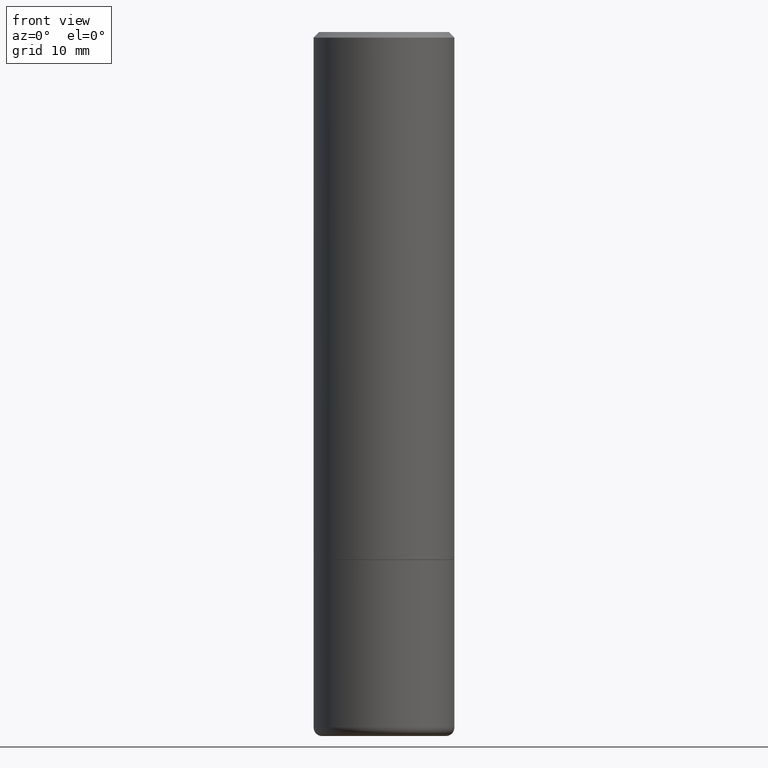
[diagram: clean part render]
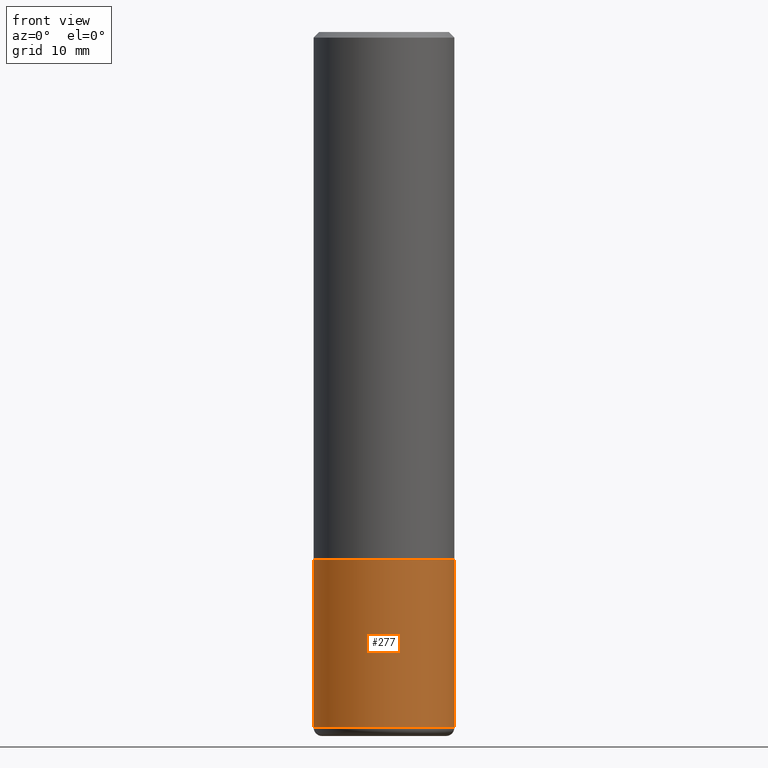
[diagram: same view with one face highlighted and labeled with its STEP entity id]
A machine part, front view. The second image highlights one B-rep face of the part: STEP entity #277.
In plain terms, the highlighted cylindrical surface (partial cylindrical patch) has radius 6.35 mm, axis along (-0, 0, 1).
Its self-contained STEP definition (entity closure, byte-faithful):
#7 = AXIS2_PLACEMENT_3D ( 'NONE', #52, #160, #264 ) ;
#30 = EDGE_CURVE ( 'NONE', #34, #69, #390, .T. ) ;
#34 = VERTEX_POINT ( 'NONE', #149 ) ;
#50 = CARTESIAN_POINT ( 'NONE',  ( -0.2500000000000000000, -5.808886369236483886E-15, -1.875000000000000000 ) ) ;
#51 = ORIENTED_EDGE ( 'NONE', *, *, #30, .T. ) ;
#52 = CARTESIAN_POINT ( 'NONE',  ( 4.585254011597131119E-29, -6.546527510330898707E-15, -1.875000000000000000 ) ) ;
#59 = CYLINDRICAL_SURFACE ( 'NONE', #62, 0.2500000000000000000 ) ;
#62 = AXIS2_PLACEMENT_3D ( 'NONE', #437, #124, #292 ) ;
#66 = ORIENTED_EDGE ( 'NONE', *, *, #342, .T. ) ;
#69 = VERTEX_POINT ( 'NONE', #176 ) ;
#92 = FACE_OUTER_BOUND ( 'NONE', #165, .T. ) ;
#95 = VERTEX_POINT ( 'NONE', #50 ) ;
#99 = CIRCLE ( 'NONE', #106, 0.2500000000000000000 ) ;
#104 = LINE ( 'NONE', #211, #205 ) ;
#106 = AXIS2_PLACEMENT_3D ( 'NONE', #430, #305, #329 ) ;
#124 = DIRECTION ( 'NONE',  ( -2.445468806185136597E-29, 3.491481338843145583E-15, 1.000000000000000000 ) ) ;
#128 = EDGE_CURVE ( 'NONE', #320, #95, #104, .T. ) ;
#149 = CARTESIAN_POINT ( 'NONE',  ( 0.2500000000000000000, -1.036969957636413667E-14, -2.470000000000000195 ) ) ;
#154 = CARTESIAN_POINT ( 'NONE',  ( -0.2500000000000000000, -6.847602067542320320E-15, -2.470000000000000195 ) ) ;
#160 = DIRECTION ( 'NONE',  ( -2.445468806185136597E-29, 3.491481338843145583E-15, 1.000000000000000000 ) ) ;
#165 = EDGE_LOOP ( 'NONE', ( #332, #66, #51, #310 ) ) ;
#176 = CARTESIAN_POINT ( 'NONE',  ( 0.2500000000000000000, -8.292268179752465385E-15, -1.875000000000000000 ) ) ;
#180 = CIRCLE ( 'NONE', #7, 0.2500000000000000000 ) ;
#205 = VECTOR ( 'NONE', #348, 39.37007874015748143 ) ;
#211 = CARTESIAN_POINT ( 'NONE',  ( -0.2500000000000000000, 1.776356839400250465E-15, -1.229733772563726445E-29 ) ) ;
#262 = EDGE_CURVE ( 'NONE', #95, #69, #180, .T. ) ;
#264 = DIRECTION ( 'NONE',  ( 1.000000000000000000, -6.982962677686266711E-15, 0.000000000000000000 ) ) ;
#277 = ADVANCED_FACE ( 'NONE', ( #92 ), #59, .T. ) ;
#289 = VECTOR ( 'NONE', #388, 39.37007874015748143 ) ;
#292 = DIRECTION ( 'NONE',  ( 1.000000000000000000, -6.982962677686266711E-15, 4.876176775795935793E-29 ) ) ;
#305 = DIRECTION ( 'NONE',  ( -2.445468806185136597E-29, 3.491481338843145583E-15, 1.000000000000000000 ) ) ;
#310 = ORIENTED_EDGE ( 'NONE', *, *, #262, .F. ) ;
#320 = VERTEX_POINT ( 'NONE', #154 ) ;
#329 = DIRECTION ( 'NONE',  ( 1.000000000000000000, -6.982962677686266711E-15, 0.000000000000000000 ) ) ;
#332 = ORIENTED_EDGE ( 'NONE', *, *, #128, .F. ) ;
#342 = EDGE_CURVE ( 'NONE', #320, #34, #99, .T. ) ;
#348 = DIRECTION ( 'NONE',  ( -2.445468806185136877E-29, 3.491481338843145188E-15, 1.000000000000000000 ) ) ;
#388 = DIRECTION ( 'NONE',  ( -2.445468806185136877E-29, 3.491481338843145188E-15, 1.000000000000000000 ) ) ;
#390 = LINE ( 'NONE', #422, #289 ) ;
#422 = CARTESIAN_POINT ( 'NONE',  ( 0.2500000000000000000, -1.745740669421566678E-15, 1.219044193948983948E-29 ) ) ;
#430 = CARTESIAN_POINT ( 'NONE',  ( 6.040307951277287977E-29, -8.623958906942569995E-15, -2.470000000000000195 ) ) ;
#437 = CARTESIAN_POINT ( 'NONE',  ( 0.000000000000000000, 0.000000000000000000, 0.000000000000000000 ) ) ;